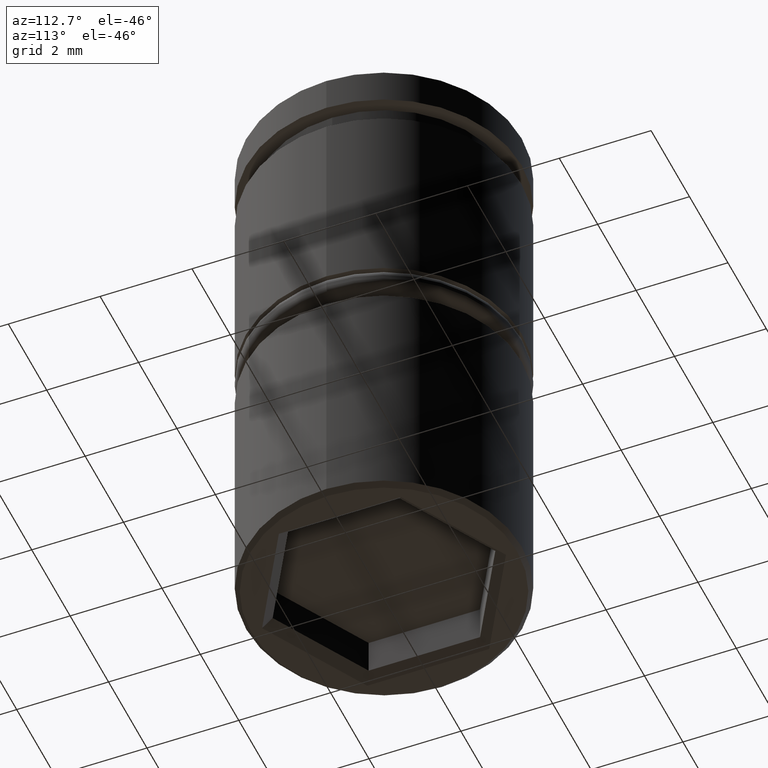
[diagram: clean part render]
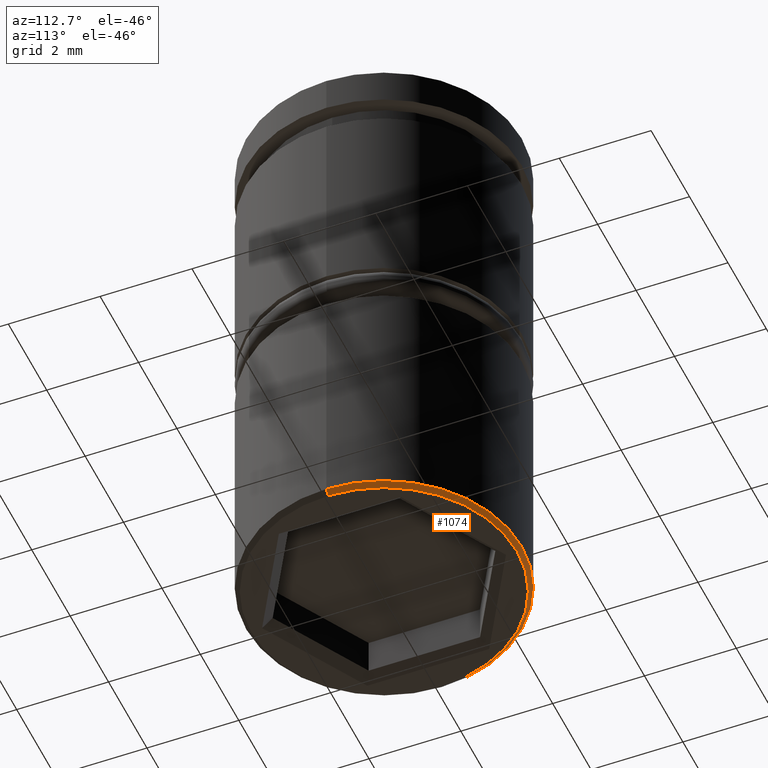
[diagram: same view with one face highlighted and labeled with its STEP entity id]
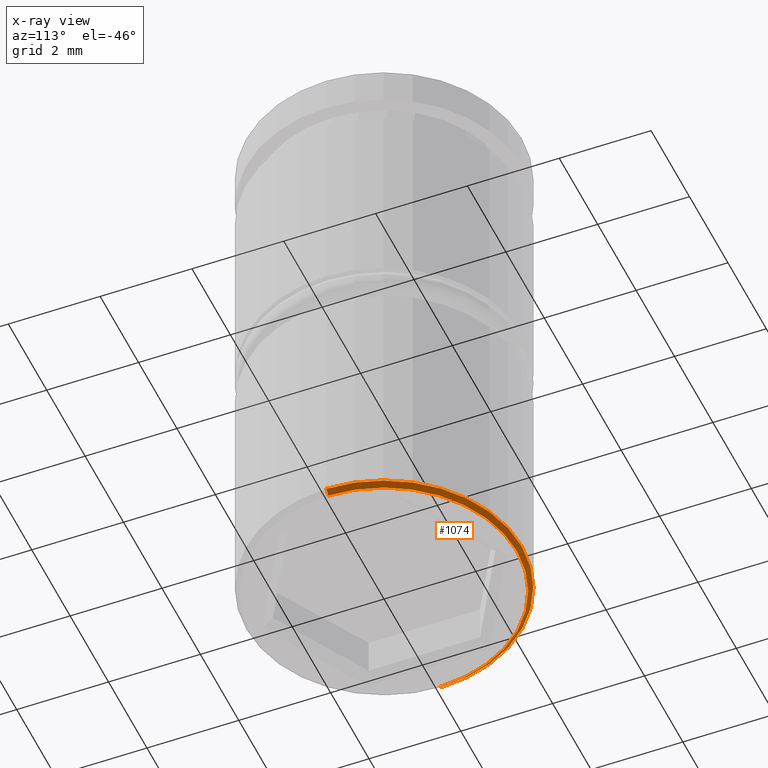
[diagram: x-ray of the same camera — body ghosted, the highlighted face saturated]
A machine part, auxiliary view. The second image highlights one B-rep face of the part: STEP entity #1074.
The next image is the same camera in x-ray: the body ghosted, the highlighted face saturated — about 0% of this face is hidden behind the body in this view.
In plain terms, the highlighted conical surface has half-angle 45 deg.
Its self-contained STEP definition (entity closure, byte-faithful):
#52 = ORIENTED_EDGE ( 'NONE', *, *, #509, .F. ) ;
#79 = VERTEX_POINT ( 'NONE', #505 ) ;
#127 = AXIS2_PLACEMENT_3D ( 'NONE', #268, #1174, #639 ) ;
#156 = ORIENTED_EDGE ( 'NONE', *, *, #558, .F. ) ;
#187 = DIRECTION ( 'NONE',  ( -0.7071067811865430208, 8.659560562354877391E-17, 0.7071067811865521247 ) ) ;
#199 = VECTOR ( 'NONE', #187, 999.9999999999998863 ) ;
#230 = CARTESIAN_POINT ( 'NONE',  ( 0.000000000000000000, 0.000000000000000000, -11.89999999999999503 ) ) ;
#242 = DIRECTION ( 'NONE',  ( -0.000000000000000000, -0.000000000000000000, 1.000000000000000000 ) ) ;
#247 = AXIS2_PLACEMENT_3D ( 'NONE', #230, #242, #609 ) ;
#253 = EDGE_CURVE ( 'NONE', #1124, #803, #726, .T. ) ;
#268 = CARTESIAN_POINT ( 'NONE',  ( 0.000000000000000000, 0.000000000000000000, -11.89999999999999503 ) ) ;
#304 = CONICAL_SURFACE ( 'NONE', #247, 3.000000000000000000, 0.7853981633974418397 ) ;
#335 = CIRCLE ( 'NONE', #127, 3.000000000000000000 ) ;
#393 = DIRECTION ( 'NONE',  ( -1.000000000000000000, 0.000000000000000000, 0.000000000000000000 ) ) ;
#394 = EDGE_CURVE ( 'NONE', #1124, #1003, #935, .T. ) ;
#417 = CARTESIAN_POINT ( 'NONE',  ( -2.899999999999996803, 3.612708057484690125E-16, -12.00000000000000000 ) ) ;
#433 = DIRECTION ( 'NONE',  ( 0.7071067811865430208, 0.000000000000000000, 0.7071067811865521247 ) ) ;
#477 = VECTOR ( 'NONE', #433, 999.9999999999998863 ) ;
#490 = DIRECTION ( 'NONE',  ( 0.000000000000000000, 0.000000000000000000, -1.000000000000000000 ) ) ;
#505 = CARTESIAN_POINT ( 'NONE',  ( 3.000000000000000000, 0.000000000000000000, -11.89999999999999503 ) ) ;
#509 = EDGE_CURVE ( 'NONE', #1003, #79, #794, .T. ) ;
#538 = CARTESIAN_POINT ( 'NONE',  ( -3.000000000000000000, 3.673940397442059868E-16, -11.89999999999999503 ) ) ;
#558 = EDGE_CURVE ( 'NONE', #79, #803, #335, .T. ) ;
#581 = ORIENTED_EDGE ( 'NONE', *, *, #394, .F. ) ;
#609 = DIRECTION ( 'NONE',  ( 1.000000000000000000, 0.000000000000000000, 0.000000000000000000 ) ) ;
#612 = FACE_OUTER_BOUND ( 'NONE', #897, .T. ) ;
#639 = DIRECTION ( 'NONE',  ( -1.000000000000000000, 0.000000000000000000, 0.000000000000000000 ) ) ;
#726 = LINE ( 'NONE', #1107, #199 ) ;
#794 = LINE ( 'NONE', #1160, #477 ) ;
#803 = VERTEX_POINT ( 'NONE', #538 ) ;
#897 = EDGE_LOOP ( 'NONE', ( #581, #932, #156, #52 ) ) ;
#932 = ORIENTED_EDGE ( 'NONE', *, *, #253, .T. ) ;
#935 = CIRCLE ( 'NONE', #956, 2.899999999999996803 ) ;
#941 = CARTESIAN_POINT ( 'NONE',  ( 0.000000000000000000, 0.000000000000000000, -12.00000000000000000 ) ) ;
#956 = AXIS2_PLACEMENT_3D ( 'NONE', #941, #490, #393 ) ;
#1003 = VERTEX_POINT ( 'NONE', #1059 ) ;
#1059 = CARTESIAN_POINT ( 'NONE',  ( 2.899999999999996803, 0.000000000000000000, -12.00000000000000000 ) ) ;
#1074 = ADVANCED_FACE ( 'NONE', ( #612 ), #304, .T. ) ;
#1107 = CARTESIAN_POINT ( 'NONE',  ( -3.000000000000000000, 3.673940397442059868E-16, -11.89999999999999503 ) ) ;
#1124 = VERTEX_POINT ( 'NONE', #417 ) ;
#1160 = CARTESIAN_POINT ( 'NONE',  ( 3.000000000000000000, 0.000000000000000000, -11.89999999999999503 ) ) ;
#1174 = DIRECTION ( 'NONE',  ( -0.000000000000000000, -0.000000000000000000, 1.000000000000000000 ) ) ;